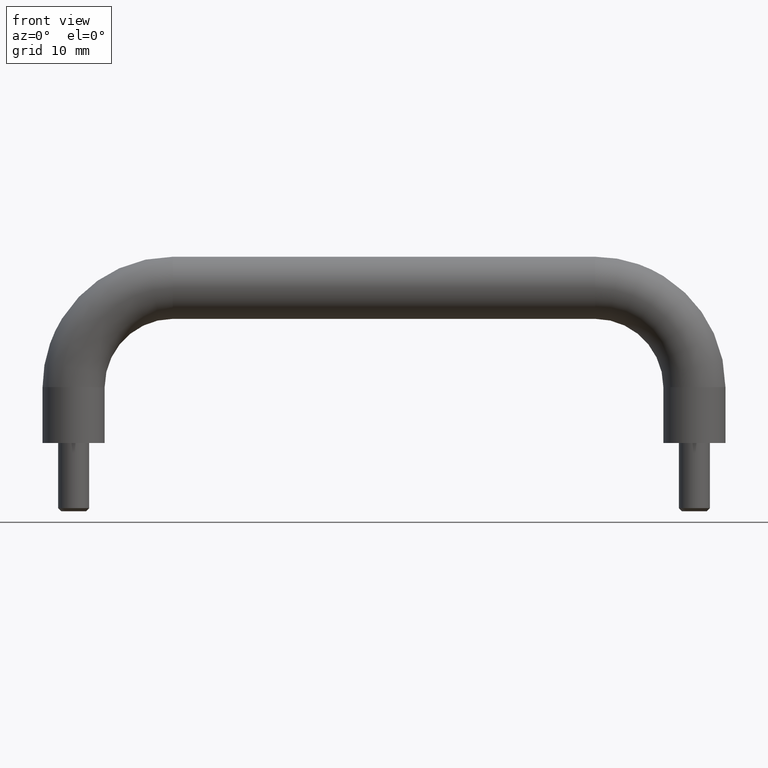
[diagram: clean part render]
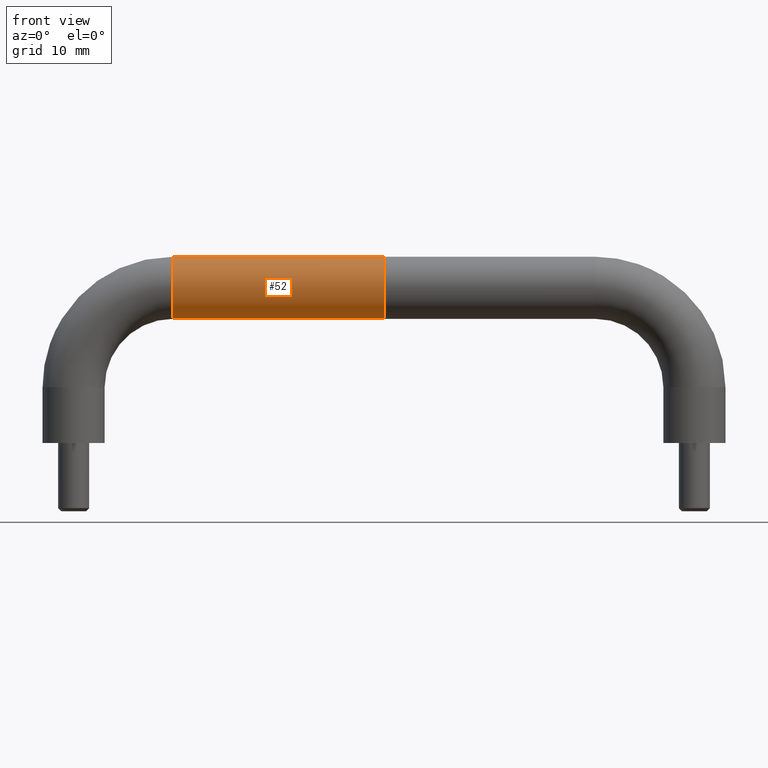
[diagram: same view with one face highlighted and labeled with its STEP entity id]
A machine part, front view. The second image highlights one B-rep face of the part: STEP entity #52.
In plain terms, the highlighted cylindrical surface (edge-blend (fillet) strip) has radius 5 mm, axis along (-1, -0, -0).
Its self-contained STEP definition (entity closure, byte-faithful):
#52=ADVANCED_FACE('',(#187),#186,.T.);
#186=CYLINDRICAL_SURFACE('',#563,5.00000000000E+00);
#187=FACE_OUTER_BOUND('',#564,.T.);
#560=CARTESIAN_POINT('',(-1.70000000000E+01,-9.33697563710E-11,4.99999999976E+00));
#561=DIRECTION('',(-1.00000000000E+00,-0.00000000000E+00,-1.38243194669E-11));
#562=DIRECTION('',(1.38243194669E-11,0.00000000000E+00,-1.00000000000E+00));
#563=AXIS2_PLACEMENT_3D('',#560,#561,#562);
#564=EDGE_LOOP('',(#676,#677,#678,#679));
#676=ORIENTED_EDGE('',*,*,#738,.T.);
#677=ORIENTED_EDGE('',*,*,#754,.F.);
#678=ORIENTED_EDGE('',*,*,#755,.T.);
#679=ORIENTED_EDGE('',*,*,#756,.T.);
#738=EDGE_CURVE('',#867,#860,#868,.T.);
#754=EDGE_CURVE('',#972,#860,#973,.T.);
#755=EDGE_CURVE('',#972,#979,#980,.T.);
#756=EDGE_CURVE('',#979,#867,#986,.T.);
#860=VERTEX_POINT('',#1141);
#867=VERTEX_POINT('',#1146);
#868=CIRCLE('',#1150,5.00000000000E+00);
#972=VERTEX_POINT('',#1216);
#973=(BOUNDED_CURVE() B_SPLINE_CURVE(1,(#1217,#1218),.UNSPECIFIED.,.F.,.F.) B_SPLINE_CURVE_WITH_KNOTS((2,2),(8.33333335810E-02,9.16666666255E-01),.UNSPECIFIED.) CURVE() GEOMETRIC_REPRESENTATION_ITEM() RATIONAL_B_SPLINE_CURVE((1.00000000000E+00,1.00000000000E+00)) REPRESENTATION_ITEM('') );
#979=VERTEX_POINT('',#1219);
#980=CIRCLE('',#1223,5.00000000000E+00);
#986=(BOUNDED_CURVE() B_SPLINE_CURVE(1,(#1224,#1225),.UNSPECIFIED.,.F.,.F.) B_SPLINE_CURVE_WITH_KNOTS((2,2),(8.33333333342E-02,9.16666666667E-01),.UNSPECIFIED.) CURVE() GEOMETRIC_REPRESENTATION_ITEM() RATIONAL_B_SPLINE_CURVE((7.50000000000E-01,7.50000000000E-01)) REPRESENTATION_ITEM('') );
#1141=CARTESIAN_POINT('',(-3.39999999999E+01,-9.33697563710E-11,-4.70225636207E-10));
#1146=CARTESIAN_POINT('',(-3.40000000001E+01,-9.33694603115E-11,9.99999999953E+00));
#1147=CARTESIAN_POINT('',(-3.40000000000E+01,-9.33697563710E-11,4.99999999953E+00));
#1148=DIRECTION('',(1.00000000000E+00,2.87219101558E-39,1.38243194669E-11));
#1149=DIRECTION('',(1.38243194669E-11,-5.92118999992E-17,-1.00000000000E+00));
#1150=AXIS2_PLACEMENT_3D('',#1147,#1148,#1149);
#1216=CARTESIAN_POINT('',(5.10702585001E-15,-9.33697563710E-11,-2.96059473233E-16));
#1217=CARTESIAN_POINT('',(-1.00364658806E-08,-9.33697563710E-11,6.03821787426E-16));
#1218=CARTESIAN_POINT('',(-3.39999999832E+01,-9.33697563710E-11,-4.70026257681E-10));
#1219=CARTESIAN_POINT('',(-6.91164903089E-11,-9.33706647337E-11,1.00000000000E+01));
#1220=CARTESIAN_POINT('',(-3.45556916415E-11,-9.33697563710E-11,5.00000000000E+00));
#1221=DIRECTION('',(-1.00000000000E+00,8.96831017168E-44,-6.91215973347E-12));
#1222=DIRECTION('',(-6.91215973347E-12,-5.92118999992E-17,1.00000000000E+00));
#1223=AXIS2_PLACEMENT_3D('',#1220,#1221,#1222);
#1224=CARTESIAN_POINT('',(-1.03677066932E-10,-9.33694603115E-11,1.00000000000E+01));
#1225=CARTESIAN_POINT('',(-3.40000000001E+01,-9.33694603115E-11,9.99999999953E+00));